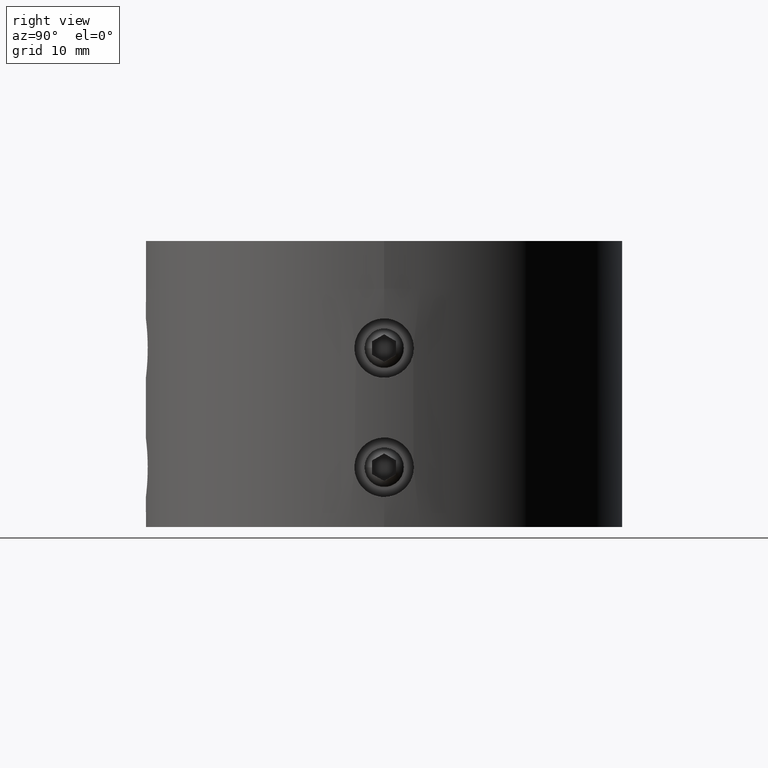
[diagram: clean part render]
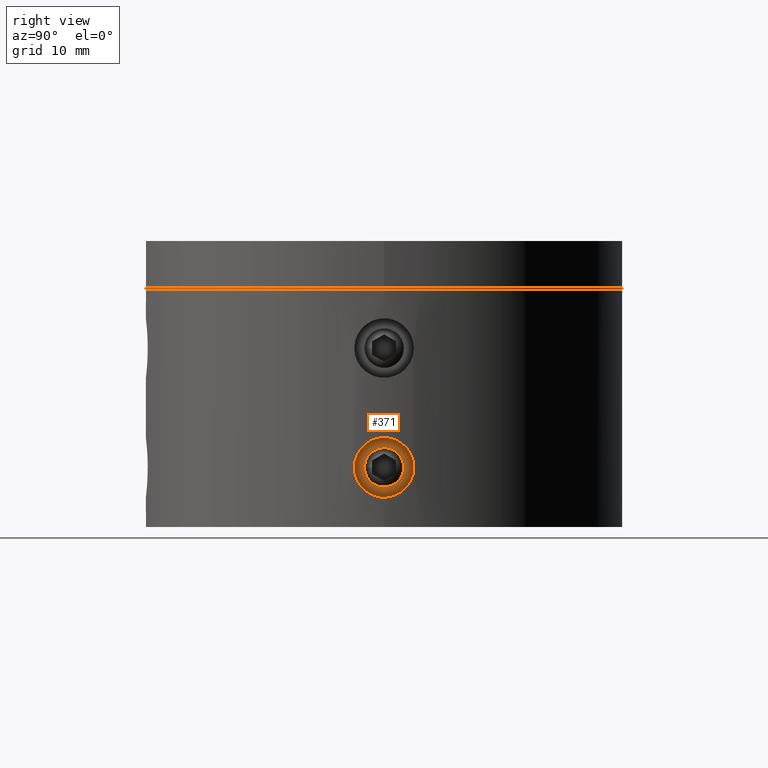
[diagram: same view with one face highlighted and labeled with its STEP entity id]
A machine part, right view. The second image highlights one B-rep face of the part: STEP entity #371.
In plain terms, the highlighted planar face has unit normal (-1, 0, 0).
Its self-contained STEP definition (entity closure, byte-faithful):
#371 = ADVANCED_FACE( '', ( #474, #475 ), #476, .F. );
#474 = FACE_BOUND( '', #646, .T. );
#475 = FACE_OUTER_BOUND( '', #647, .T. );
#476 = PLANE( '', #648 );
#646 = EDGE_LOOP( '', ( #842 ) );
#647 = EDGE_LOOP( '', ( #843 ) );
#648 = AXIS2_PLACEMENT_3D( '', #844, #845, #846 );
#842 = ORIENTED_EDGE( '', *, *, #1202, .F. );
#843 = ORIENTED_EDGE( '', *, *, #1204, .F. );
#844 = CARTESIAN_POINT( '', ( 15.0000000000000, -9.18454765366783E-016, -29.0000000000000 ) );
#845 = DIRECTION( '', ( -1.00000000000000, 6.12303176911189E-017, 0.000000000000000 ) );
#846 = DIRECTION( '', ( 0.000000000000000, 0.000000000000000, -1.00000000000000 ) );
#1202 = EDGE_CURVE( '', #1330, #1330, #1331, .T. );
#1204 = EDGE_CURVE( '', #1334, #1334, #1335, .T. );
#1330 = VERTEX_POINT( '', #1986 );
#1331 = CIRCLE( '', #1987, 1.65000000000000 );
#1334 = VERTEX_POINT( '', #1990 );
#1335 = CIRCLE( '', #1991, 2.50000000000000 );
#1986 = CARTESIAN_POINT( '', ( 15.0000000000000, -1.65000000000000, -29.0000000000000 ) );
#1987 = AXIS2_PLACEMENT_3D( '', #2338, #2339, #2340 );
#1990 = CARTESIAN_POINT( '', ( 15.0000000000000, 2.50000000000000, -29.0000000000000 ) );
#1991 = AXIS2_PLACEMENT_3D( '', #2344, #2345, #2346 );
#2338 = CARTESIAN_POINT( '', ( 15.0000000000000, -9.18454765366783E-016, -29.0000000000000 ) );
#2339 = DIRECTION( '', ( 1.00000000000000, -6.12303176911189E-017, -0.000000000000000 ) );
#2340 = DIRECTION( '', ( -6.12303176911189E-017, -1.00000000000000, 0.000000000000000 ) );
#2344 = CARTESIAN_POINT( '', ( 15.0000000000000, -9.18454765366783E-016, -29.0000000000000 ) );
#2345 = DIRECTION( '', ( -1.00000000000000, 6.12303176911189E-017, 0.000000000000000 ) );
#2346 = DIRECTION( '', ( 6.12303176911189E-017, 1.00000000000000, 0.000000000000000 ) );